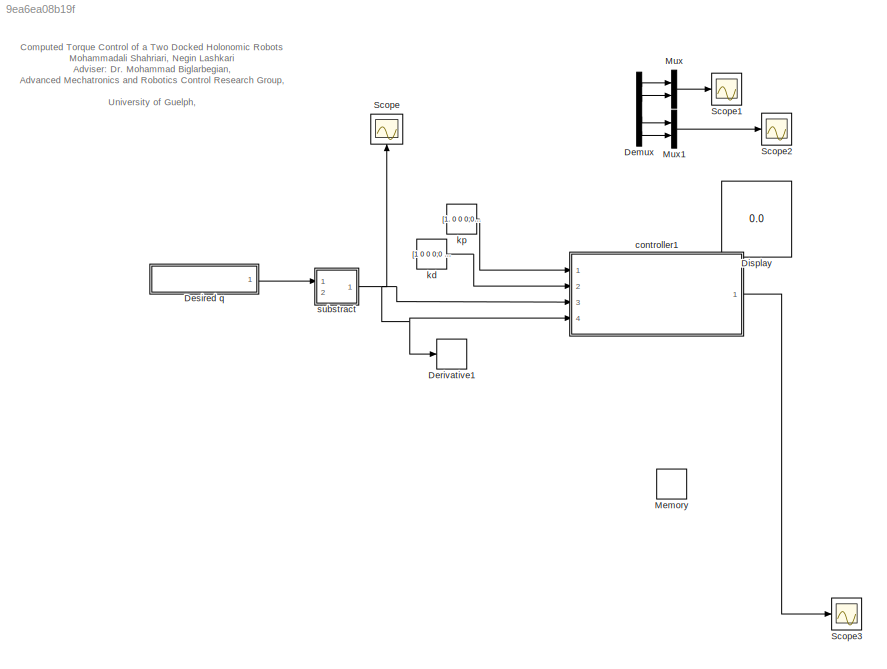
MODEL slx_9ea6ea08b19f
KIND model
BLOCK [Demux] Demux
  DisplayOption = bar
  Ports = [1, 4]
BLOCK [Derivative] Derivative1
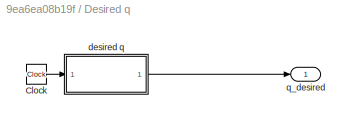
BLOCK [SubSystem] Desired q 
  Ports = [0, 1]
  RequestExecContextInheritance = off
BLOCK [Clock] Desired q /Clock
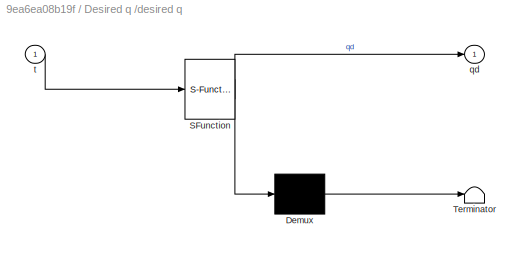
BLOCK [SubSystem] Desired q /desired q
  ErrorFcn = Stateflow.Translate.translate
  PermitHierarchicalResolution = ExplicitOnly
  Ports = [1, 1]
  RequestExecContextInheritance = off
  SFBlockType = MATLAB Function
  TreatAsAtomicUnit = on
BLOCK [Demux] Desired q /desired q/ Demux 
  Outputs = 1
  Ports = [1, 1]
BLOCK [S-Function] Desired q /desired q/ SFunction 
  EnableBusSupport = on
  FunctionName = sf_sfun
  PortCounts = [1 2]
  Ports = [1, 2]
  Tag = Stateflow S-Function pd 2
BLOCK [Terminator] Desired q /desired q/ Terminator 
BLOCK [Outport] Desired q /desired q/qd
  IconDisplay = Port number
BLOCK [Inport] Desired q /desired q/t
  IconDisplay = Port number
BLOCK [Outport] Desired q /q_desired 
  IconDisplay = Port number
BLOCK [Display] Display
  Decimation = 1
  Ports = [1]
BLOCK [Memory] Memory
  X0 = [0;0;0;0;0;0;0;0]
BLOCK [Mux] Mux
  DisplayOption = bar
  Inputs = 2
  Ports = [2, 1]
BLOCK [Mux] Mux1
  DisplayOption = bar
  Inputs = 2
  Ports = [2, 1]
BLOCK [Scope] Scope
  Floating = off
  NumInputPorts = 1
  Ports = [1]
  SaveName = ScopeData1
  ShowLegends = off
  ZoomMode = yonly
BLOCK [Scope] Scope1
  Floating = off
  NumInputPorts = 1
  Ports = [1]
  SaveName = ScopeData2
  ShowLegends = off
BLOCK [Scope] Scope2
  Floating = off
  NumInputPorts = 1
  Ports = [1]
  SaveName = ScopeData3
  ShowLegends = off
BLOCK [Scope] Scope3
  Floating = off
  NumInputPorts = 1
  Ports = [1]
  SaveName = ScopeData4
  ShowLegends = off
  ZoomMode = yonly
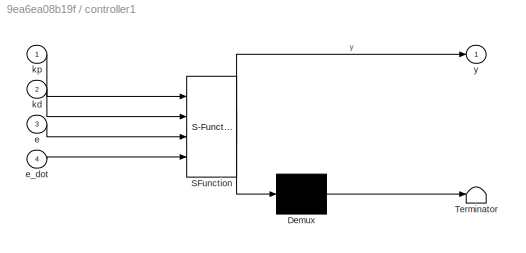
BLOCK [SubSystem] controller1
  ErrorFcn = Stateflow.Translate.translate
  PermitHierarchicalResolution = ExplicitOnly
  Ports = [4, 1]
  RequestExecContextInheritance = off
  SFBlockType = MATLAB Function
  TreatAsAtomicUnit = on
BLOCK [Demux] controller1/ Demux 
  Outputs = 1
  Ports = [1, 1]
BLOCK [S-Function] controller1/ SFunction 
  EnableBusSupport = on
  FunctionName = sf_sfun
  PortCounts = [4 2]
  Ports = [4, 2]
  Tag = Stateflow S-Function pd 4
BLOCK [Terminator] controller1/ Terminator 
BLOCK [Inport] controller1/e
  IconDisplay = Port number
  Port = 3
BLOCK [Inport] controller1/e_dot
  IconDisplay = Port number
  Port = 4
BLOCK [Inport] controller1/kd
  IconDisplay = Port number
  Port = 2
BLOCK [Inport] controller1/kp
  IconDisplay = Port number
BLOCK [Outport] controller1/y
  IconDisplay = Port number
BLOCK [Constant] kd
  Value = [1 0 0 0;0 1 0 0 ; 0 0 0.01 0; 0 0 0 0.01]*20
BLOCK [Constant] kp
  Value = [1. 0 0 0;0 1. 0 0 ; 0 0 0.2 0; 0 0 0 0.2]*10
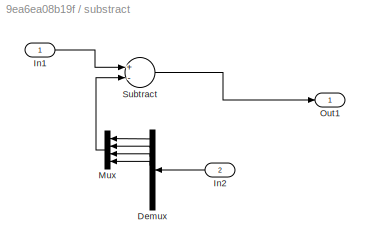
BLOCK [SubSystem] substract
  Ports = [2, 1]
  RequestExecContextInheritance = off
BLOCK [Demux] substract/Demux
  DisplayOption = bar
  Outputs = 8
  Ports = [1, 8]
BLOCK [Inport] substract/In1
  IconDisplay = Port number
BLOCK [Inport] substract/In2
  IconDisplay = Port number
  Port = 2
BLOCK [Mux] substract/Mux
  DisplayOption = bar
  Ports = [4, 1]
BLOCK [Outport] substract/Out1
  IconDisplay = Port number
BLOCK [Sum] substract/Subtract
  InputSameDT = off
  Inputs = +-
  OutDataTypeStr = Inherit: Inherit via internal rule
  Ports = [2, 1]
  SaturateOnIntegerOverflow = off
ANNOTATION (root): Computed Torque Control of a Two Docked Holonomic Robots Mohammadali Shahriari, Negin Lashkari Adviser: Dr. Mohammad Biglarbegian, Advanced Mechatronics and Robotics Control Research Group, University of Guelph, Guelph, Canada Oct, 2015
LINE Demux:1 -> Mux:1
LINE Demux:2 -> Mux:2
LINE Demux:3 -> Mux1:1
LINE Demux:4 -> Mux1:2
LINE Desired q /Clock:1 -> Desired q /desired q:1
LINE Desired q /desired q:1 -> Desired q /q_desired :1
LINE Desired q :1 -> substract:1
LINE Mux1:1 -> Scope2:1
LINE Mux:1 -> Scope1:1
LINE controller1:1 -> Scope3:1
LINE kd:1 -> controller1:2
LINE kp:1 -> controller1:1
LINE substract/Demux:1 -> substract/Mux:1
LINE substract/Demux:2 -> substract/Mux:2
LINE substract/Demux:3 -> substract/Mux:3
LINE substract/Demux:4 -> substract/Mux:4
LINE substract/In1:1 -> substract/Subtract:1
LINE substract/In2:1 -> substract/Demux:1
LINE substract/Mux:1 -> substract/Subtract:2
LINE substract/Subtract:1 -> substract/Out1:1
NET substract:1 -> Derivative1:1, Scope:1, controller1:3, controller1:4
note: NET lines group one-source signal fan-out (src -> all destinations, sorted); 1:1 wires keep LINE
CHART Desired q
/desired q states=1 transitions=1
  STATE_LABEL 'eML_blk_kernel()'
  STATE_LABEL 'SCRIPT:\nfunction qd= fcn(t)\nqd=q_desired(t);\n'
CHART controller1 states=1 transitions=1
  STATE_LABEL 'eML_blk_kernel()'
  STATE_LABEL 'SCRIPT:\nfunction y= fcn(kp,kd,e,e_dot)\n\ny=kp*e+kd*e_dot;'
